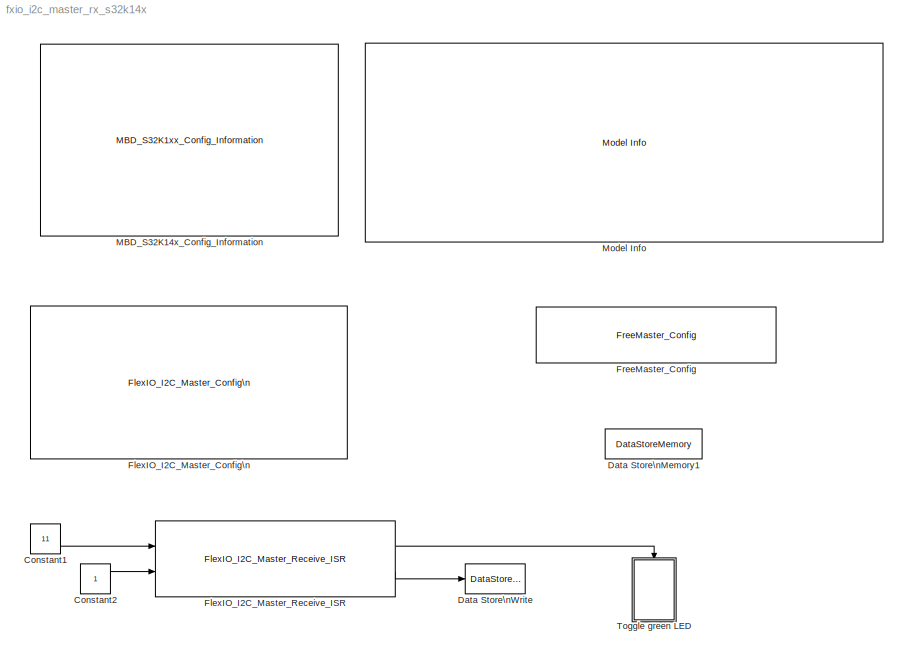
MODEL fxio_i2c_master_rx_s32k14x
KIND model
CONFIG InitFcn = mbd_s32k_consistency_checks(bdroot(gcs));
BLOCK [Constant] Constant1
  OutDataTypeStr = uint8
  SID = 31
  Value = 11
BLOCK [Constant] Constant2
  OutDataTypeStr = uint32
  SID = 32
BLOCK [DataStoreMemory] Data Store\nMemory1
  DataStoreName = data_recv
  ReadBeforeWriteMsg = warning
  SID = 24
  ShowAdditionalParam = off
  WriteAfterReadMsg = warning
  WriteAfterWriteMsg = warning
BLOCK [DataStoreWrite] Data Store\nWrite
  DataStoreName = data_recv
  Ports = [1]
  SID = 33
BLOCK [Reference] FlexIO_I2C_Master_Config\n  REF=mbd_s32k1xx_ec_toolbox/Communication Blocks/FlexIO Blocks\n/FlexIO I2C Blocks/FlexIO_I2C_Master_Config\n
  BaudRate = 10000
  DriverType = Interrupts
  InstanceNumber = 0
  Ports = []
  Priority = 1
  SCL_pin = PTA3: [FXIO_D5 | FlexIO Bi-directional Shift/timer I/O]
  SDA_pin = PTA2: [FXIO_D4 | FlexIO Bi-directional Shift/timer I/O]
  SID = 2
  SourceBlock = mbd_s32k1xx_ec_toolbox/Communication Blocks/FlexIO Blocks\n/FlexIO I2C Blocks/FlexIO_I2C_Master_Config\n
  SourceType = flexio_i2c_s32k_master_config
BLOCK [Reference] FlexIO_I2C_Master_Receive_ISR  REF=mbd_s32k1xx_ec_toolbox/Communication Blocks/FlexIO Blocks\n/FlexIO I2C Blocks/FlexIO_I2C_Master_Receive_ISR
  InstanceNumber = 0
  Ports = [2, 2]
  SID = 30
  SourceBlock = mbd_s32k1xx_ec_toolbox/Communication Blocks/FlexIO Blocks\n/FlexIO I2C Blocks/FlexIO_I2C_Master_Receive_ISR
  SourceType = flexio_i2c_s32k_master_receive_isr
BLOCK [Reference] FreeMaster_Config  REF=mbd_s32k1xx_ec_toolbox/Utility Blocks/FreeMaster_Config
  Ports = []
  SID = 29
  SourceBlock = mbd_s32k1xx_ec_toolbox/Utility Blocks/FreeMaster_Config
  SourceType = fm_s32k_config
  baudrate = 115200
  comm_buffer_size = 255
  comm_buffer_size_auto = on
  comm_rqueue_size = 32
  comm_rqueue_size_default = on
  interface = LPUART1
  isr_prio = 2
  max_rec_vars = 8
  max_scope_vars = 8
  mode = Short Interrupt
  rec_buff_size = 1024
  rec_timebase = 0
  rec_timebase_unit = seconds
  rxd = PTC6: [LPUART1_RX | Receive]
  show_adv_opts = on
  txd = PTC7: [LPUART1_TX | Transmit]
  use_recorder = on
  use_scope = on
BLOCK [Reference] MBD_S32K14x_Config_Information  REF=mbd_s32k1xx_ec_toolbox/MBD_S32K1xx_Config_Information
  ADC_PcrCheckEnDis = on
  AMMCLIB_PcrCheckEnDis = on
  CMP_PcrCheckEnDis = on
  CSEc_PcrCheckEnDis = on
  ConfigParams_PcrCheckEnDis = on
  FM_PcrCheckEnDis = on
  FTM_Dual_Edge_Inputs_PcrCheckEnDis = on
  FTM_Hall_Sensor_Inputs_PcrCheckEnDis = on
  FTM_Input_Edge_Inputs_PcrCheckEnDis = on
  FTM_PWM_PcrCheckEnDis = on
  FTM_Quadrature_Inputs_PcrCheckEnDis = on
  FlexCAN_PcrCheckEnDis = on
  FlexIO_PcrCheckEnDis = on
  GPIO_InputPcrCheckEnDis = on
  GPIO_OutputPcrCheckEnDis = on
  LIN_PcrCheckEnDis = on
  LPI2C_PcrCheckEnDis = on
  LPSPI_PcrCheckEnDis = on
  LPTMR_PcrCheckEnDis = on
  LPUART_PcrCheckEnDis = on
  ModelRef_PcrCheckEnDis = on
  PDB0_PcrCheckEnDis = on
  PIT_PcrCheckEnDis = on
  Ports = []
  Profile_PcrCheckEnDis = on
  RTC_PcrCheckEnDis = on
  SBC_PcrCheckEnDis = on
  SID = 1
  SourceBlock = mbd_s32k1xx_ec_toolbox/MBD_S32K1xx_Config_Information
  SourceType = MBDTBX_EC_S32K
  WDOG_PcrCheckEnDis = on
  config_params = []
  disp_str = Target : S32K144-64KB_SRAM\nPackage : 100-pin\nSystem clock : 80 MHz\nXTAL clock : External 8 MHz\nCompiler : GreenHills Multi\nTarget Type : FLASH\nDownload Code after build : off\nStep Tick Interrupt Priority : 15
  ds_import_enable = on
  eDMA_PcrCheckEnDis = on
  gcc_target_assemble_opts = -mcpu=cortex-m4 -mthumb -mfloat-abi=hard -mfpu=fpv4-sp-d16 -g
  gcc_target_compile_opts = -mcpu=cortex-m4 -mthumb -mfloat-abi=hard -mfpu=fpv4-sp-d16 -O1 -g -gstrict-dwarf
  gcc_target_default_lcf = on
  gcc_target_link_opts = -mcpu=cortex-m4 -mthumb -mfloat-abi=hard -mfpu=fpv4-sp-d16
  gcc_target_user_lcf = S32K144_48_flash.ld
  ghs_target_assemble_opts = -cpu=cortexm4f -fpu=vfpv4_d16
  ghs_target_compile_opts = -cpu=cortexm4f -thumb -DARM_MATH_CM4 -fpu=vfpv4_d16 -fsingle -Ogeneral -Wundef -Wimplicit-int -Wshadow -Wtrigraphs --no_commons --gnu_asm -gnu99 -gdwarf-2 -G
  ghs_target_default_lcf = on
  ghs_target_link_opts = -cpu=cortexm4f -thumb -fpu=vfpv4_d16
  ghs_target_user_lcf = S32K144_48_flash.ld
  iar_target_assemble_opts = --cpu Cortex-M4F --thumb --fpu VFPv4_sp
  iar_target_compile_opts = --cpu=Cortex-M4F --thumb --fpu=VFPv4_sp -Ol -e --debug --dlib_config normal
  iar_target_default_lcf = on
  iar_target_link_opts = --no_exceptions --vfe --inline
  iar_target_user_lcf = S32K144_48_flash.icf
  mbdt_ver = 0
  mcu_steptick_prio = 0
  mcu_steptick_timer = LPIT Channel 0
  mcu_system_clock_freq = 80
  mcu_target_name = S32K144
  mcu_target_package = 100-LQFP
  mcu_target_sram_size = 48KB
  mcu_xtal_freq = External 8
  pil_download_enable = off
  pil_download_rate = 57600
  pil_opensda_drive = Custom
  pil_opensda_drive_custom = D
  pil_uart_instance = 1
  pil_uart_rx = PTC6: [LPUART1_RX | Receive]
  pil_uart_tx = PTC7: [LPUART1_TX | Transmit]
  rbl_com_port = Custom
  rbl_com_port_custom = COM1
  rbl_download_enable = on
  rbl_download_interface = OpenSDA
  rbl_restart_request = off
  rbl_start_delay = 5000000
  target_compiler = GCC
  target_memory = FLASH
BLOCK [Reference] Model Info  REF=simulink/Model-Wide\nUtilities/Model Info
  DisplayStringWithTags = Model Name: %<ModelName>\n\nDescription: %<Description>
  Frame = off
  HorizontalTextAlignment = Left
  LeftAlignmentValue = 0.02
  MaskDisplayString = Model Name: fxio_i2c_master_rx_s32k14x\\n\\nDescription: FlexIO Master example - receiving data over I2C (emulation).\\n\\nIn this example, master requests data from slave continuously.\\n\\nHW prerequisite:\\n- 2x S32K144 EVB (one running slave from fxio_i2c_slave_s32k14), one master running this code\\n- Connect:\\n    Master SDA - Slave SDA   : PTD2 (from this board) -  PTA2 (from slave board)\...<+206ch>
  Ports = []
  SID = 38
  SourceBlock = simulink/Model-Wide\nUtilities/Model Info
  SourceProductBaseCode = SL
  SourceProductName = Simulink
  SourceType = CMBlock
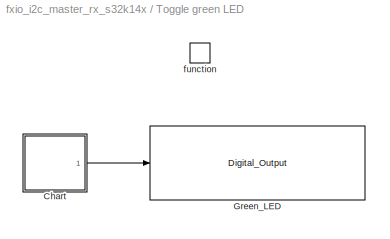
BLOCK [SubSystem] Toggle green LED
  Ports = [0, 0, 0, 1]
  RequestExecContextInheritance = off
  SID = 34
  Variant = off
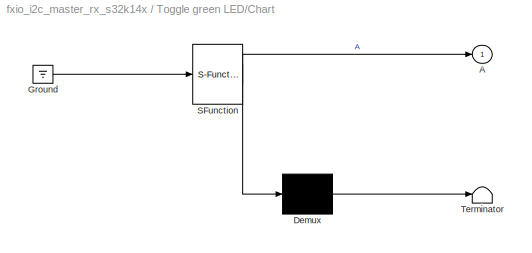
BLOCK [SubSystem] Toggle green LED/Chart
  ErrorFcn = Stateflow.Translate.translate
  PermitHierarchicalResolution = ExplicitOnly
  Ports = [0, 1]
  RequestExecContextInheritance = off
  SFBlockType = Chart
  SID = 36
  TreatAsAtomicUnit = on
  Variant = off
BLOCK [Outport] Toggle green LED/Chart/ A
  IconDisplay = Port number
  SID = 36::6
BLOCK [Demux] Toggle green LED/Chart/ Demux 
  Outputs = 1
  Ports = [1, 1]
  SID = 36::36
BLOCK [Ground] Toggle green LED/Chart/ Ground 
  SID = 36::38
BLOCK [S-Function] Toggle green LED/Chart/ SFunction 
  EnableBusSupport = on
  FunctionName = sf_sfun
  PortCounts = [1 2]
  Ports = [1, 2]
  SFcnIsStateOwnerBlock = off
  SFunctionDeploymentMode = off
  SID = 36::35
  Tag = Stateflow S-Function fxio_i2c_master_rx_s32k14x 1
BLOCK [Terminator] Toggle green LED/Chart/ Terminator 
  SID = 36::37
BLOCK [Reference] Toggle green LED/Green_LED  REF=mbd_s32k1xx_ec_toolbox/GPIO Blocks/Digital_Output
  Ports = [1]
  SID = 37
  SourceBlock = mbd_s32k1xx_ec_toolbox/GPIO Blocks/Digital_Output
  SourceType = gpio_s32k_output
  drive_strength = Low
  gpio_pin = PTD16: [PTD16 | Port D I/O]
  init_val = Low
BLOCK [TriggerPort] Toggle green LED/function
  Ports = []
  SID = 35
  StatesWhenEnabling = held
  TriggerType = function-call
  VariantControl = Variant
LINE Constant1:1 -> FlexIO_I2C_Master_Receive_ISR:1
LINE Constant2:1 -> FlexIO_I2C_Master_Receive_ISR:2
LINE FlexIO_I2C_Master_Receive_ISR:1 -> Toggle green LED:trigger
LINE FlexIO_I2C_Master_Receive_ISR:2 -> Data Store\nWrite:1
LINE Toggle green LED/Chart/ Demux :1 -> Toggle green LED/Chart/ Terminator :1
LINE Toggle green LED/Chart/ Ground :1 -> Toggle green LED/Chart/ SFunction :1
LINE Toggle green LED/Chart/ SFunction :1 -> Toggle green LED/Chart/ Demux :1
LINE Toggle green LED/Chart/ SFunction :2 -> Toggle green LED/Chart/ A:1
LINE Toggle green LED/Chart:1 -> Toggle green LED/Green_LED:1
CHART Toggle green LED/Chart states=2 transitions=3
  STATE_LABEL 'A'
  STATE_LABEL 'A1'
